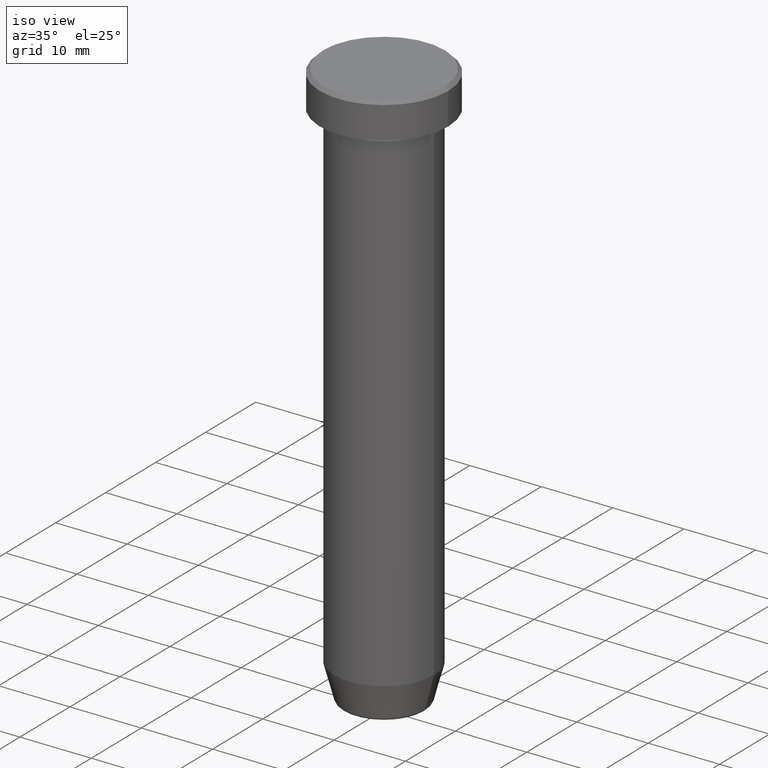
[diagram: clean part render]
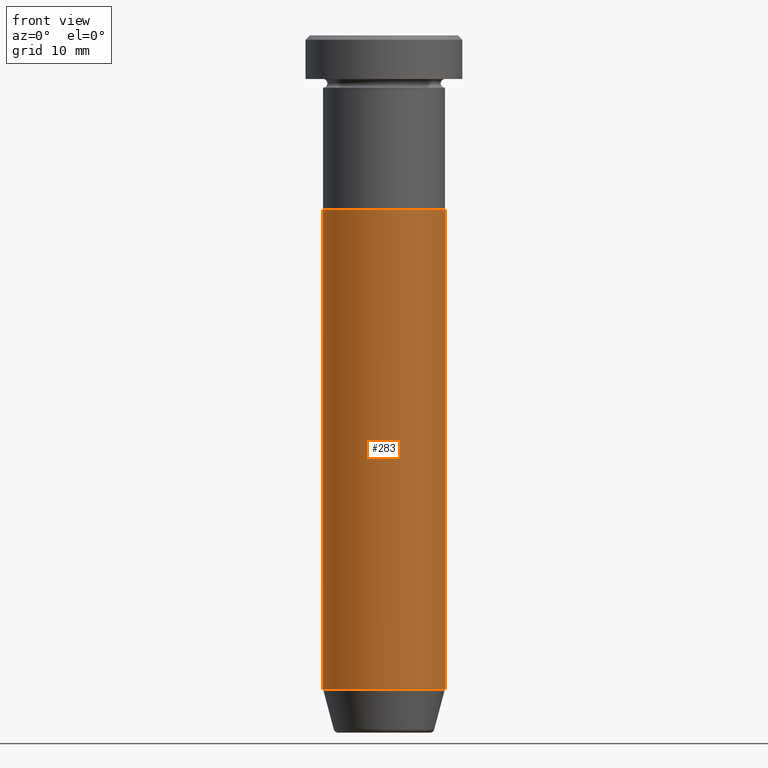
[diagram: tour spotlight — one face highlighted and labeled with its STEP entity id]
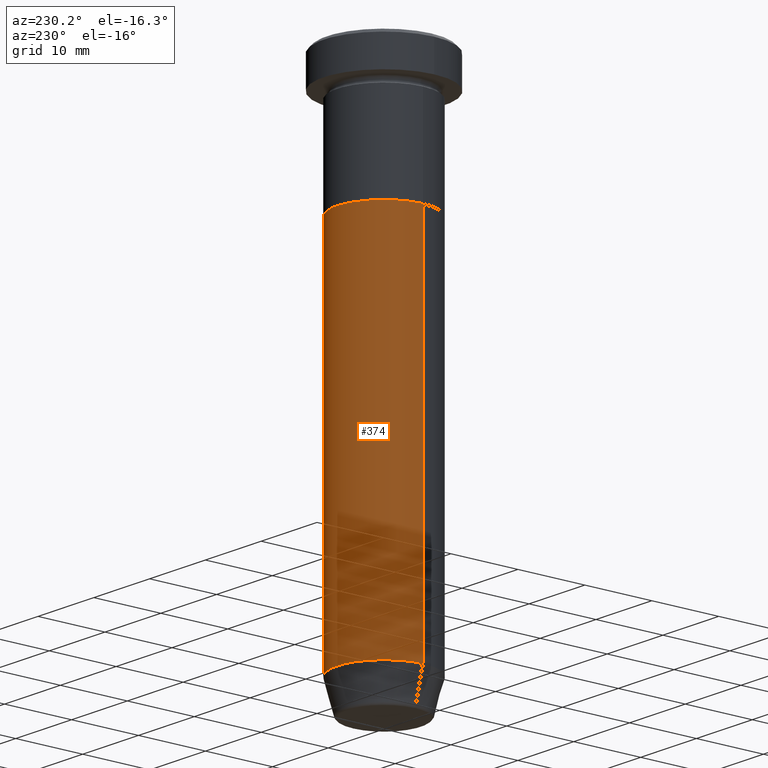
[diagram: tour spotlight — one face highlighted and labeled with its STEP entity id]
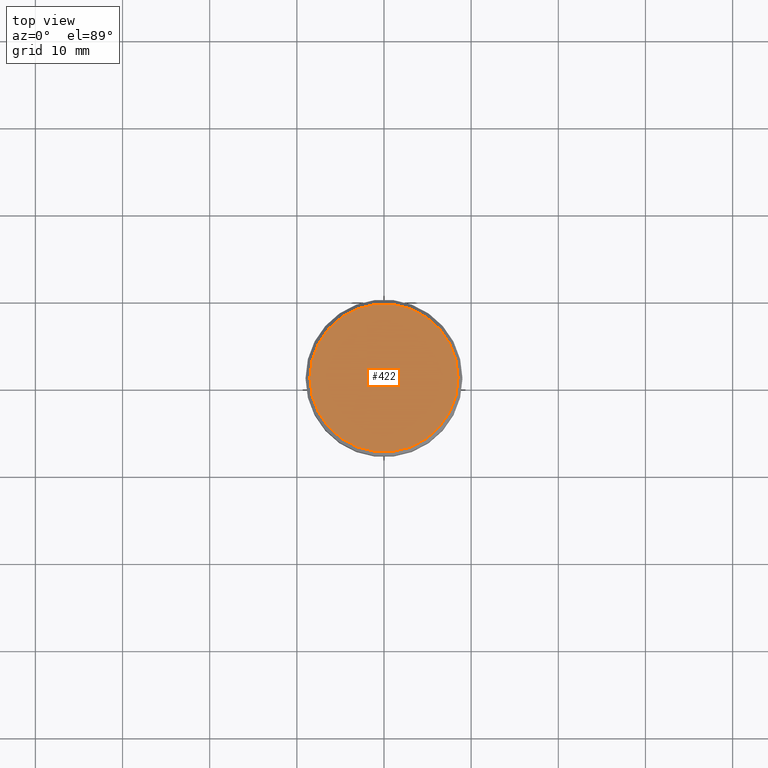
[diagram: tour spotlight — one face highlighted and labeled with its STEP entity id]
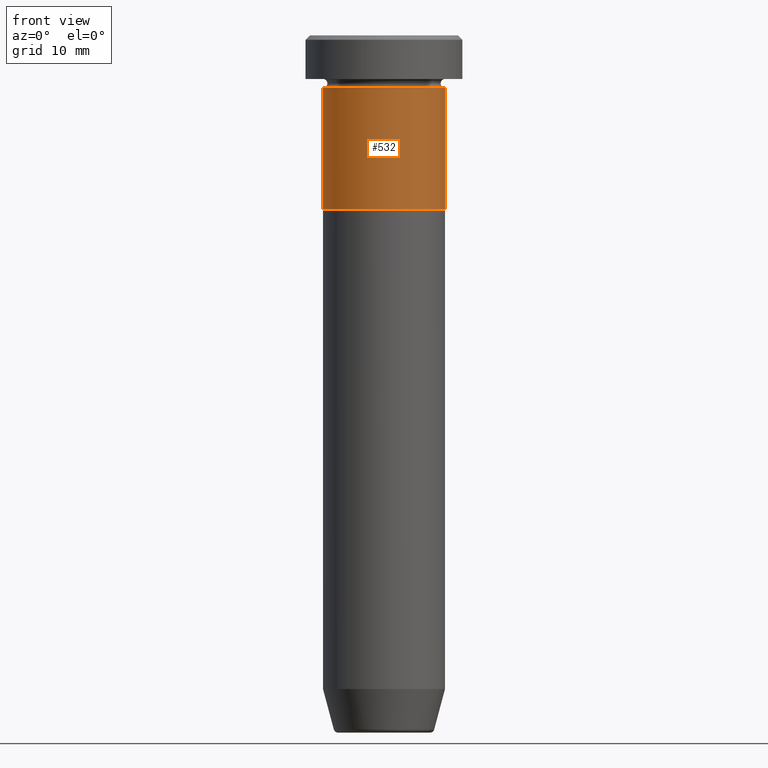
[diagram: tour spotlight — one face highlighted and labeled with its STEP entity id]
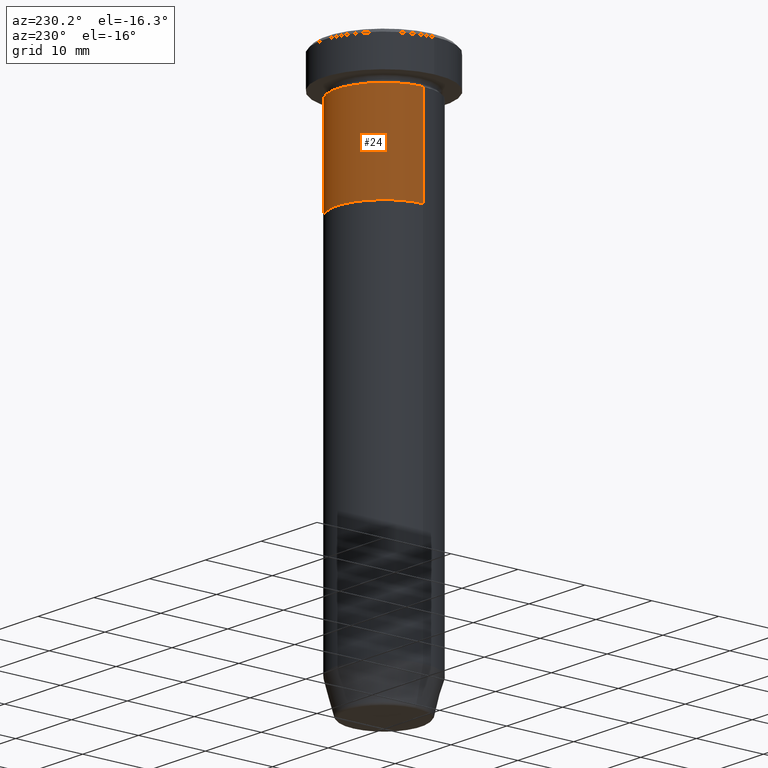
[diagram: tour spotlight — one face highlighted and labeled with its STEP entity id]
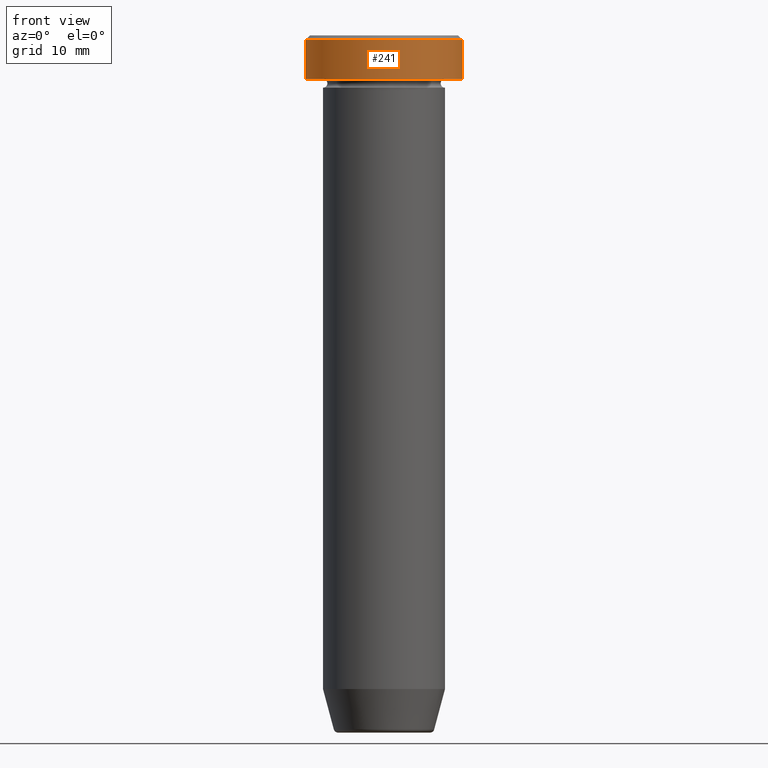
[diagram: tour spotlight — one face highlighted and labeled with its STEP entity id]
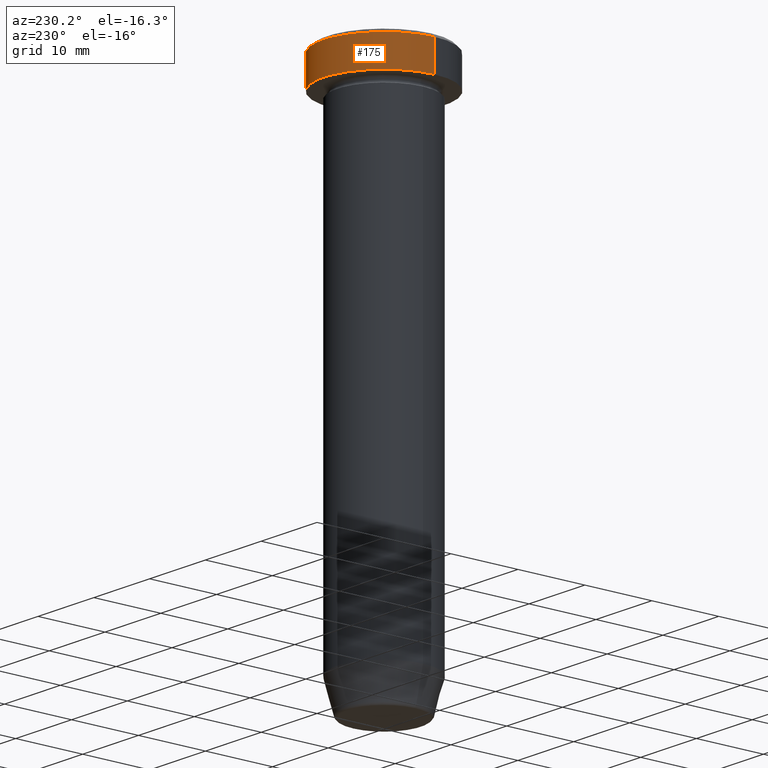
[diagram: tour spotlight — one face highlighted and labeled with its STEP entity id]
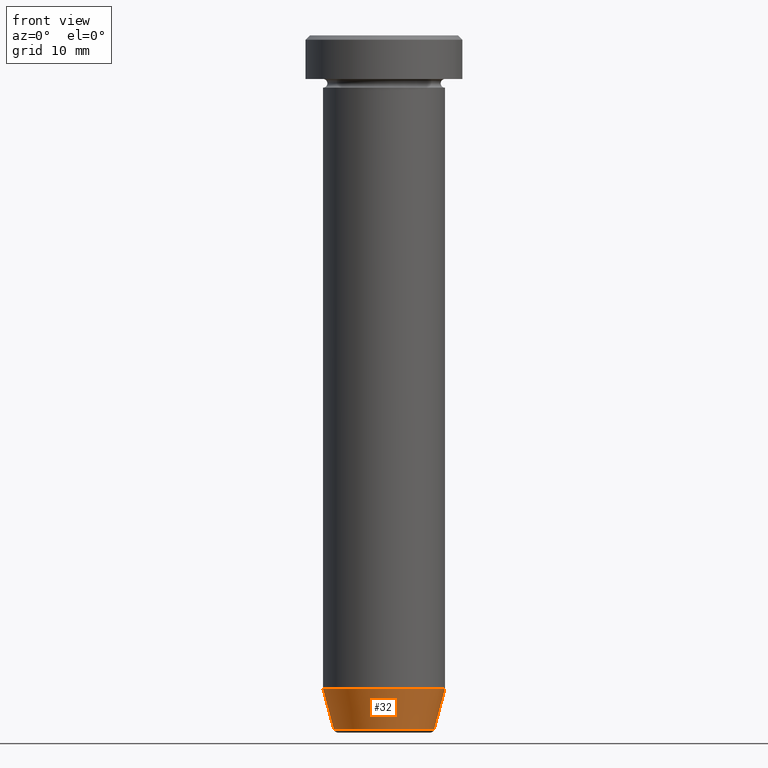
[diagram: tour spotlight — one face highlighted and labeled with its STEP entity id]
A machine part: a face-by-face anatomy tour. The part has 21 B-rep faces; the first image is the clean iso view, then the 8 largest visible faces are spotlighted one at a time (largest first), each with its STEP entity span.

Face 1 — front view, entity #283. In plain terms, the highlighted cylindrical surface (partial cylindrical patch) has radius 7 mm, axis along (-0, -0, 1).
Definition (entity closure, byte-faithful):
#58 = VECTOR ( 'NONE', #453, 1000.000000000000000 ) ;
#65 = ORIENTED_EDGE ( 'NONE', *, *, #474, .F. ) ;
#102 = EDGE_CURVE ( 'NONE', #395, #345, #593, .T. ) ;
#104 = CARTESIAN_POINT ( 'NONE',  ( 7.000000000000000000, 0.000000000000000000, -75.00000000000000000 ) ) ;
#118 = DIRECTION ( 'NONE',  ( -0.000000000000000000, -0.000000000000000000, 1.000000000000000000 ) ) ;
#120 = AXIS2_PLACEMENT_3D ( 'NONE', #457, #540, #273 ) ;
#145 = EDGE_LOOP ( 'NONE', ( #155, #358, #562, #65 ) ) ;
#153 = DIRECTION ( 'NONE',  ( 1.000000000000000000, 0.000000000000000000, 0.000000000000000000 ) ) ;
#155 = ORIENTED_EDGE ( 'NONE', *, *, #578, .F. ) ;
#201 = CARTESIAN_POINT ( 'NONE',  ( -7.000000000000000000, 8.572527594031473190E-16, -20.00000000000000000 ) ) ;
#208 = CARTESIAN_POINT ( 'NONE',  ( -7.000000000000000000, 8.572527594031473190E-16, -75.00000000000000000 ) ) ;
#210 = CARTESIAN_POINT ( 'NONE',  ( 0.000000000000000000, 0.000000000000000000, -20.00000000000000000 ) ) ;
#221 = LINE ( 'NONE', #528, #58 ) ;
#238 = CYLINDRICAL_SURFACE ( 'NONE', #120, 7.000000000000000000 ) ;
#259 = EDGE_CURVE ( 'NONE', #354, #395, #415, .T. ) ;
#262 = CARTESIAN_POINT ( 'NONE',  ( 0.000000000000000000, 0.000000000000000000, -75.00000000000000000 ) ) ;
#273 = DIRECTION ( 'NONE',  ( 1.000000000000000000, 0.000000000000000000, 0.000000000000000000 ) ) ;
#283 = ADVANCED_FACE ( 'NONE', ( #338 ), #238, .T. ) ;
#289 = DIRECTION ( 'NONE',  ( -0.000000000000000000, -0.000000000000000000, 1.000000000000000000 ) ) ;
#312 = AXIS2_PLACEMENT_3D ( 'NONE', #262, #509, #332 ) ;
#332 = DIRECTION ( 'NONE',  ( 1.000000000000000000, 0.000000000000000000, 0.000000000000000000 ) ) ;
#333 = CARTESIAN_POINT ( 'NONE',  ( 7.000000000000000000, 0.000000000000000000, 0.000000000000000000 ) ) ;
#338 = FACE_OUTER_BOUND ( 'NONE', #145, .T. ) ;
#341 = CARTESIAN_POINT ( 'NONE',  ( 7.000000000000000000, 0.000000000000000000, -20.00000000000000000 ) ) ;
#345 = VERTEX_POINT ( 'NONE', #341 ) ;
#354 = VERTEX_POINT ( 'NONE', #208 ) ;
#358 = ORIENTED_EDGE ( 'NONE', *, *, #259, .T. ) ;
#395 = VERTEX_POINT ( 'NONE', #104 ) ;
#415 = CIRCLE ( 'NONE', #312, 7.000000000000000000 ) ;
#417 = AXIS2_PLACEMENT_3D ( 'NONE', #210, #118, #153 ) ;
#452 = CIRCLE ( 'NONE', #417, 7.000000000000000000 ) ;
#453 = DIRECTION ( 'NONE',  ( -0.000000000000000000, -0.000000000000000000, 1.000000000000000000 ) ) ;
#457 = CARTESIAN_POINT ( 'NONE',  ( 0.000000000000000000, 0.000000000000000000, 0.000000000000000000 ) ) ;
#474 = EDGE_CURVE ( 'NONE', #527, #345, #452, .T. ) ;
#509 = DIRECTION ( 'NONE',  ( -0.000000000000000000, -0.000000000000000000, 1.000000000000000000 ) ) ;
#527 = VERTEX_POINT ( 'NONE', #201 ) ;
#528 = CARTESIAN_POINT ( 'NONE',  ( -7.000000000000000000, 8.572527594031473190E-16, 0.000000000000000000 ) ) ;
#533 = VECTOR ( 'NONE', #289, 1000.000000000000000 ) ;
#540 = DIRECTION ( 'NONE',  ( -0.000000000000000000, -0.000000000000000000, 1.000000000000000000 ) ) ;
#562 = ORIENTED_EDGE ( 'NONE', *, *, #102, .T. ) ;
#578 = EDGE_CURVE ( 'NONE', #354, #527, #221, .T. ) ;
#593 = LINE ( 'NONE', #333, #533 ) ;

Face 2 — auxiliary view, entity #374. In plain terms, the highlighted cylindrical surface (partial cylindrical patch) has radius 7 mm, axis along (-0, -0, 1).
Definition (entity closure, byte-faithful):
#13 = ORIENTED_EDGE ( 'NONE', *, *, #123, .F. ) ;
#42 = ORIENTED_EDGE ( 'NONE', *, *, #578, .T. ) ;
#47 = AXIS2_PLACEMENT_3D ( 'NONE', #523, #112, #480 ) ;
#53 = CARTESIAN_POINT ( 'NONE',  ( 0.000000000000000000, 0.000000000000000000, -20.00000000000000000 ) ) ;
#58 = VECTOR ( 'NONE', #453, 1000.000000000000000 ) ;
#68 = EDGE_LOOP ( 'NONE', ( #320, #42, #13, #588 ) ) ;
#102 = EDGE_CURVE ( 'NONE', #395, #345, #593, .T. ) ;
#104 = CARTESIAN_POINT ( 'NONE',  ( 7.000000000000000000, 0.000000000000000000, -75.00000000000000000 ) ) ;
#112 = DIRECTION ( 'NONE',  ( -0.000000000000000000, -0.000000000000000000, 1.000000000000000000 ) ) ;
#123 = EDGE_CURVE ( 'NONE', #345, #527, #443, .T. ) ;
#136 = DIRECTION ( 'NONE',  ( -0.000000000000000000, -0.000000000000000000, 1.000000000000000000 ) ) ;
#192 = CIRCLE ( 'NONE', #295, 7.000000000000000000 ) ;
#201 = CARTESIAN_POINT ( 'NONE',  ( -7.000000000000000000, 8.572527594031473190E-16, -20.00000000000000000 ) ) ;
#208 = CARTESIAN_POINT ( 'NONE',  ( -7.000000000000000000, 8.572527594031473190E-16, -75.00000000000000000 ) ) ;
#221 = LINE ( 'NONE', #528, #58 ) ;
#230 = DIRECTION ( 'NONE',  ( 1.000000000000000000, 0.000000000000000000, 0.000000000000000000 ) ) ;
#237 = DIRECTION ( 'NONE',  ( 1.000000000000000000, 0.000000000000000000, 0.000000000000000000 ) ) ;
#289 = DIRECTION ( 'NONE',  ( -0.000000000000000000, -0.000000000000000000, 1.000000000000000000 ) ) ;
#292 = EDGE_CURVE ( 'NONE', #395, #354, #192, .T. ) ;
#295 = AXIS2_PLACEMENT_3D ( 'NONE', #554, #136, #230 ) ;
#320 = ORIENTED_EDGE ( 'NONE', *, *, #292, .T. ) ;
#333 = CARTESIAN_POINT ( 'NONE',  ( 7.000000000000000000, 0.000000000000000000, 0.000000000000000000 ) ) ;
#341 = CARTESIAN_POINT ( 'NONE',  ( 7.000000000000000000, 0.000000000000000000, -20.00000000000000000 ) ) ;
#345 = VERTEX_POINT ( 'NONE', #341 ) ;
#354 = VERTEX_POINT ( 'NONE', #208 ) ;
#374 = ADVANCED_FACE ( 'NONE', ( #379 ), #560, .T. ) ;
#375 = AXIS2_PLACEMENT_3D ( 'NONE', #53, #498, #237 ) ;
#379 = FACE_OUTER_BOUND ( 'NONE', #68, .T. ) ;
#395 = VERTEX_POINT ( 'NONE', #104 ) ;
#443 = CIRCLE ( 'NONE', #375, 7.000000000000000000 ) ;
#453 = DIRECTION ( 'NONE',  ( -0.000000000000000000, -0.000000000000000000, 1.000000000000000000 ) ) ;
#480 = DIRECTION ( 'NONE',  ( 1.000000000000000000, 0.000000000000000000, 0.000000000000000000 ) ) ;
#498 = DIRECTION ( 'NONE',  ( -0.000000000000000000, -0.000000000000000000, 1.000000000000000000 ) ) ;
#523 = CARTESIAN_POINT ( 'NONE',  ( 0.000000000000000000, 0.000000000000000000, 0.000000000000000000 ) ) ;
#527 = VERTEX_POINT ( 'NONE', #201 ) ;
#528 = CARTESIAN_POINT ( 'NONE',  ( -7.000000000000000000, 8.572527594031473190E-16, 0.000000000000000000 ) ) ;
#533 = VECTOR ( 'NONE', #289, 1000.000000000000000 ) ;
#554 = CARTESIAN_POINT ( 'NONE',  ( 0.000000000000000000, 0.000000000000000000, -75.00000000000000000 ) ) ;
#560 = CYLINDRICAL_SURFACE ( 'NONE', #47, 7.000000000000000000 ) ;
#578 = EDGE_CURVE ( 'NONE', #354, #527, #221, .T. ) ;
#588 = ORIENTED_EDGE ( 'NONE', *, *, #102, .F. ) ;
#593 = LINE ( 'NONE', #333, #533 ) ;

Face 3 — top view, entity #422. In plain terms, the highlighted planar face has unit normal (0, -0, 1).
Definition (entity closure, byte-faithful):
#3 = DIRECTION ( 'NONE',  ( 1.000000000000000000, 0.000000000000000000, 0.000000000000000000 ) ) ;
#56 = DIRECTION ( 'NONE',  ( -0.000000000000000000, -0.000000000000000000, 1.000000000000000000 ) ) ;
#88 = DIRECTION ( 'NONE',  ( 1.000000000000000000, 0.000000000000000000, 0.000000000000000000 ) ) ;
#91 = FACE_OUTER_BOUND ( 'NONE', #209, .T. ) ;
#143 = EDGE_CURVE ( 'NONE', #199, #543, #321, .T. ) ;
#164 = EDGE_CURVE ( 'NONE', #543, #199, #595, .T. ) ;
#199 = VERTEX_POINT ( 'NONE', #329 ) ;
#209 = EDGE_LOOP ( 'NONE', ( #494, #455 ) ) ;
#275 = DIRECTION ( 'NONE',  ( -0.000000000000000000, -0.000000000000000000, 1.000000000000000000 ) ) ;
#282 = AXIS2_PLACEMENT_3D ( 'NONE', #336, #275, #380 ) ;
#313 = AXIS2_PLACEMENT_3D ( 'NONE', #463, #317, #88 ) ;
#317 = DIRECTION ( 'NONE',  ( 0.000000000000000000, -0.000000000000000000, 1.000000000000000000 ) ) ;
#321 = CIRCLE ( 'NONE', #282, 8.500000000000000000 ) ;
#329 = CARTESIAN_POINT ( 'NONE',  ( -8.500000000000000000, 0.000000000000000000, 0.000000000000000000 ) ) ;
#336 = CARTESIAN_POINT ( 'NONE',  ( 0.000000000000000000, 0.000000000000000000, 0.000000000000000000 ) ) ;
#380 = DIRECTION ( 'NONE',  ( 1.000000000000000000, 0.000000000000000000, 0.000000000000000000 ) ) ;
#396 = CARTESIAN_POINT ( 'NONE',  ( 8.500000000000000000, 1.071565949253933927E-15, 0.000000000000000000 ) ) ;
#422 = ADVANCED_FACE ( 'NONE', ( #91 ), #465, .T. ) ;
#455 = ORIENTED_EDGE ( 'NONE', *, *, #164, .T. ) ;
#463 = CARTESIAN_POINT ( 'NONE',  ( 0.000000000000000000, 0.000000000000000000, 0.000000000000000000 ) ) ;
#464 = CARTESIAN_POINT ( 'NONE',  ( 0.000000000000000000, 0.000000000000000000, 0.000000000000000000 ) ) ;
#465 = PLANE ( 'NONE',  #313 ) ;
#494 = ORIENTED_EDGE ( 'NONE', *, *, #143, .T. ) ;
#543 = VERTEX_POINT ( 'NONE', #396 ) ;
#577 = AXIS2_PLACEMENT_3D ( 'NONE', #464, #56, #3 ) ;
#595 = CIRCLE ( 'NONE', #577, 8.500000000000000000 ) ;

Face 4 — front view, entity #532. In plain terms, the highlighted cylindrical surface (partial cylindrical patch) has radius 7 mm, axis along (-0, -0, 1).
Definition (entity closure, byte-faithful):
#21 = CARTESIAN_POINT ( 'NONE',  ( -7.000000000000000000, 8.572527594031473190E-16, -20.00000000000000000 ) ) ;
#29 = EDGE_CURVE ( 'NONE', #141, #203, #477, .T. ) ;
#72 = ORIENTED_EDGE ( 'NONE', *, *, #246, .T. ) ;
#74 = EDGE_CURVE ( 'NONE', #456, #368, #103, .T. ) ;
#76 = AXIS2_PLACEMENT_3D ( 'NONE', #434, #536, #78 ) ;
#78 = DIRECTION ( 'NONE',  ( 1.000000000000000000, 0.000000000000000000, 0.000000000000000000 ) ) ;
#93 = AXIS2_PLACEMENT_3D ( 'NONE', #269, #131, #408 ) ;
#103 = LINE ( 'NONE', #367, #279 ) ;
#115 = CIRCLE ( 'NONE', #93, 7.000000000000000000 ) ;
#131 = DIRECTION ( 'NONE',  ( -0.000000000000000000, -0.000000000000000000, 1.000000000000000000 ) ) ;
#139 = CARTESIAN_POINT ( 'NONE',  ( 7.000000000000000000, 0.000000000000000000, -20.00000000000000000 ) ) ;
#141 = VERTEX_POINT ( 'NONE', #139 ) ;
#203 = VERTEX_POINT ( 'NONE', #277 ) ;
#235 = AXIS2_PLACEMENT_3D ( 'NONE', #483, #386, #331 ) ;
#246 = EDGE_CURVE ( 'NONE', #456, #141, #404, .T. ) ;
#248 = CYLINDRICAL_SURFACE ( 'NONE', #235, 7.000000000000000000 ) ;
#256 = CARTESIAN_POINT ( 'NONE',  ( 7.000000000000000000, 0.000000000000000000, 0.000000000000000000 ) ) ;
#269 = CARTESIAN_POINT ( 'NONE',  ( 0.000000000000000000, 0.000000000000000000, -6.000000000000000000 ) ) ;
#277 = CARTESIAN_POINT ( 'NONE',  ( 7.000000000000000000, 0.000000000000000000, -6.000000000000000000 ) ) ;
#279 = VECTOR ( 'NONE', #467, 1000.000000000000000 ) ;
#298 = FACE_OUTER_BOUND ( 'NONE', #387, .T. ) ;
#303 = EDGE_CURVE ( 'NONE', #368, #203, #115, .T. ) ;
#331 = DIRECTION ( 'NONE',  ( 1.000000000000000000, 0.000000000000000000, 0.000000000000000000 ) ) ;
#343 = CARTESIAN_POINT ( 'NONE',  ( -7.000000000000000000, 8.572527594031473190E-16, -6.000000000000000000 ) ) ;
#367 = CARTESIAN_POINT ( 'NONE',  ( -7.000000000000000000, 8.572527594031473190E-16, 0.000000000000000000 ) ) ;
#368 = VERTEX_POINT ( 'NONE', #343 ) ;
#384 = ORIENTED_EDGE ( 'NONE', *, *, #303, .F. ) ;
#386 = DIRECTION ( 'NONE',  ( -0.000000000000000000, -0.000000000000000000, 1.000000000000000000 ) ) ;
#387 = EDGE_LOOP ( 'NONE', ( #571, #72, #469, #384 ) ) ;
#404 = CIRCLE ( 'NONE', #76, 7.000000000000000000 ) ;
#408 = DIRECTION ( 'NONE',  ( 1.000000000000000000, 0.000000000000000000, 0.000000000000000000 ) ) ;
#434 = CARTESIAN_POINT ( 'NONE',  ( 0.000000000000000000, 0.000000000000000000, -20.00000000000000000 ) ) ;
#437 = DIRECTION ( 'NONE',  ( -0.000000000000000000, -0.000000000000000000, 1.000000000000000000 ) ) ;
#456 = VERTEX_POINT ( 'NONE', #21 ) ;
#467 = DIRECTION ( 'NONE',  ( -0.000000000000000000, -0.000000000000000000, 1.000000000000000000 ) ) ;
#469 = ORIENTED_EDGE ( 'NONE', *, *, #29, .T. ) ;
#477 = LINE ( 'NONE', #256, #576 ) ;
#483 = CARTESIAN_POINT ( 'NONE',  ( 0.000000000000000000, 0.000000000000000000, 0.000000000000000000 ) ) ;
#532 = ADVANCED_FACE ( 'NONE', ( #298 ), #248, .T. ) ;
#536 = DIRECTION ( 'NONE',  ( -0.000000000000000000, -0.000000000000000000, 1.000000000000000000 ) ) ;
#571 = ORIENTED_EDGE ( 'NONE', *, *, #74, .F. ) ;
#576 = VECTOR ( 'NONE', #437, 1000.000000000000000 ) ;

Face 5 — auxiliary view, entity #24. In plain terms, the highlighted cylindrical surface (partial cylindrical patch) has radius 7 mm, axis along (-0, -0, 1).
Definition (entity closure, byte-faithful):
#1 = CYLINDRICAL_SURFACE ( 'NONE', #584, 7.000000000000000000 ) ;
#17 = CARTESIAN_POINT ( 'NONE',  ( 0.000000000000000000, 0.000000000000000000, -6.000000000000000000 ) ) ;
#21 = CARTESIAN_POINT ( 'NONE',  ( -7.000000000000000000, 8.572527594031473190E-16, -20.00000000000000000 ) ) ;
#24 = ADVANCED_FACE ( 'NONE', ( #182 ), #1, .T. ) ;
#29 = EDGE_CURVE ( 'NONE', #141, #203, #477, .T. ) ;
#45 = EDGE_CURVE ( 'NONE', #203, #368, #566, .T. ) ;
#48 = CIRCLE ( 'NONE', #462, 7.000000000000000000 ) ;
#51 = CARTESIAN_POINT ( 'NONE',  ( 0.000000000000000000, 0.000000000000000000, -20.00000000000000000 ) ) ;
#74 = EDGE_CURVE ( 'NONE', #456, #368, #103, .T. ) ;
#103 = LINE ( 'NONE', #367, #279 ) ;
#119 = ORIENTED_EDGE ( 'NONE', *, *, #29, .F. ) ;
#139 = CARTESIAN_POINT ( 'NONE',  ( 7.000000000000000000, 0.000000000000000000, -20.00000000000000000 ) ) ;
#141 = VERTEX_POINT ( 'NONE', #139 ) ;
#182 = FACE_OUTER_BOUND ( 'NONE', #257, .T. ) ;
#203 = VERTEX_POINT ( 'NONE', #277 ) ;
#206 = DIRECTION ( 'NONE',  ( 1.000000000000000000, 0.000000000000000000, 0.000000000000000000 ) ) ;
#256 = CARTESIAN_POINT ( 'NONE',  ( 7.000000000000000000, 0.000000000000000000, 0.000000000000000000 ) ) ;
#257 = EDGE_LOOP ( 'NONE', ( #260, #522, #516, #119 ) ) ;
#260 = ORIENTED_EDGE ( 'NONE', *, *, #400, .T. ) ;
#276 = DIRECTION ( 'NONE',  ( -0.000000000000000000, -0.000000000000000000, 1.000000000000000000 ) ) ;
#277 = CARTESIAN_POINT ( 'NONE',  ( 7.000000000000000000, 0.000000000000000000, -6.000000000000000000 ) ) ;
#279 = VECTOR ( 'NONE', #467, 1000.000000000000000 ) ;
#335 = DIRECTION ( 'NONE',  ( -0.000000000000000000, -0.000000000000000000, 1.000000000000000000 ) ) ;
#337 = DIRECTION ( 'NONE',  ( 1.000000000000000000, 0.000000000000000000, 0.000000000000000000 ) ) ;
#343 = CARTESIAN_POINT ( 'NONE',  ( -7.000000000000000000, 8.572527594031473190E-16, -6.000000000000000000 ) ) ;
#361 = CARTESIAN_POINT ( 'NONE',  ( 0.000000000000000000, 0.000000000000000000, 0.000000000000000000 ) ) ;
#367 = CARTESIAN_POINT ( 'NONE',  ( -7.000000000000000000, 8.572527594031473190E-16, 0.000000000000000000 ) ) ;
#368 = VERTEX_POINT ( 'NONE', #343 ) ;
#400 = EDGE_CURVE ( 'NONE', #141, #456, #48, .T. ) ;
#437 = DIRECTION ( 'NONE',  ( -0.000000000000000000, -0.000000000000000000, 1.000000000000000000 ) ) ;
#456 = VERTEX_POINT ( 'NONE', #21 ) ;
#462 = AXIS2_PLACEMENT_3D ( 'NONE', #51, #335, #505 ) ;
#467 = DIRECTION ( 'NONE',  ( -0.000000000000000000, -0.000000000000000000, 1.000000000000000000 ) ) ;
#471 = AXIS2_PLACEMENT_3D ( 'NONE', #17, #570, #206 ) ;
#477 = LINE ( 'NONE', #256, #576 ) ;
#505 = DIRECTION ( 'NONE',  ( 1.000000000000000000, 0.000000000000000000, 0.000000000000000000 ) ) ;
#516 = ORIENTED_EDGE ( 'NONE', *, *, #45, .F. ) ;
#522 = ORIENTED_EDGE ( 'NONE', *, *, #74, .T. ) ;
#566 = CIRCLE ( 'NONE', #471, 7.000000000000000000 ) ;
#570 = DIRECTION ( 'NONE',  ( -0.000000000000000000, -0.000000000000000000, 1.000000000000000000 ) ) ;
#576 = VECTOR ( 'NONE', #437, 1000.000000000000000 ) ;
#584 = AXIS2_PLACEMENT_3D ( 'NONE', #361, #276, #337 ) ;

Face 6 — front view, entity #241. In plain terms, the highlighted cylindrical surface (partial cylindrical patch) has radius 9 mm, axis along (-0, -0, 1).
Definition (entity closure, byte-faithful):
#6 = CARTESIAN_POINT ( 'NONE',  ( -9.000000000000000000, 1.102182119232617714E-15, -0.5000000000000023315 ) ) ;
#10 = VERTEX_POINT ( 'NONE', #6 ) ;
#15 = FACE_OUTER_BOUND ( 'NONE', #245, .T. ) ;
#38 = CARTESIAN_POINT ( 'NONE',  ( -9.000000000000000000, 1.102182119232617714E-15, 0.000000000000000000 ) ) ;
#69 = DIRECTION ( 'NONE',  ( -0.000000000000000000, -0.000000000000000000, 1.000000000000000000 ) ) ;
#92 = DIRECTION ( 'NONE',  ( 1.000000000000000000, 0.000000000000000000, 0.000000000000000000 ) ) ;
#116 = ORIENTED_EDGE ( 'NONE', *, *, #196, .T. ) ;
#130 = ORIENTED_EDGE ( 'NONE', *, *, #491, .T. ) ;
#133 = CARTESIAN_POINT ( 'NONE',  ( 0.000000000000000000, 0.000000000000000000, -0.5000000000000023315 ) ) ;
#137 = EDGE_CURVE ( 'NONE', #426, #439, #184, .T. ) ;
#184 = LINE ( 'NONE', #460, #284 ) ;
#196 = EDGE_CURVE ( 'NONE', #439, #10, #489, .T. ) ;
#218 = AXIS2_PLACEMENT_3D ( 'NONE', #133, #552, #92 ) ;
#233 = AXIS2_PLACEMENT_3D ( 'NONE', #526, #69, #252 ) ;
#241 = ADVANCED_FACE ( 'NONE', ( #15 ), #441, .T. ) ;
#245 = EDGE_LOOP ( 'NONE', ( #551, #130, #271, #116 ) ) ;
#252 = DIRECTION ( 'NONE',  ( 1.000000000000000000, 0.000000000000000000, 0.000000000000000000 ) ) ;
#258 = DIRECTION ( 'NONE',  ( -0.000000000000000000, -0.000000000000000000, 1.000000000000000000 ) ) ;
#271 = ORIENTED_EDGE ( 'NONE', *, *, #137, .T. ) ;
#284 = VECTOR ( 'NONE', #291, 1000.000000000000000 ) ;
#286 = CIRCLE ( 'NONE', #534, 9.000000000000000000 ) ;
#291 = DIRECTION ( 'NONE',  ( -0.000000000000000000, -0.000000000000000000, 1.000000000000000000 ) ) ;
#370 = CARTESIAN_POINT ( 'NONE',  ( 9.000000000000000000, 0.000000000000000000, -5.000000000000000000 ) ) ;
#393 = CARTESIAN_POINT ( 'NONE',  ( 0.000000000000000000, 0.000000000000000000, -5.000000000000000000 ) ) ;
#399 = VECTOR ( 'NONE', #537, 1000.000000000000000 ) ;
#426 = VERTEX_POINT ( 'NONE', #370 ) ;
#439 = VERTEX_POINT ( 'NONE', #458 ) ;
#441 = CYLINDRICAL_SURFACE ( 'NONE', #233, 9.000000000000000000 ) ;
#458 = CARTESIAN_POINT ( 'NONE',  ( 9.000000000000000000, 0.000000000000000000, -0.5000000000000023315 ) ) ;
#460 = CARTESIAN_POINT ( 'NONE',  ( 9.000000000000000000, 0.000000000000000000, 0.000000000000000000 ) ) ;
#489 = CIRCLE ( 'NONE', #218, 9.000000000000000000 ) ;
#491 = EDGE_CURVE ( 'NONE', #591, #426, #286, .T. ) ;
#526 = CARTESIAN_POINT ( 'NONE',  ( 0.000000000000000000, 0.000000000000000000, 0.000000000000000000 ) ) ;
#534 = AXIS2_PLACEMENT_3D ( 'NONE', #393, #258, #574 ) ;
#535 = CARTESIAN_POINT ( 'NONE',  ( -9.000000000000000000, 1.102182119232617714E-15, -5.000000000000000000 ) ) ;
#537 = DIRECTION ( 'NONE',  ( -0.000000000000000000, -0.000000000000000000, 1.000000000000000000 ) ) ;
#551 = ORIENTED_EDGE ( 'NONE', *, *, #594, .F. ) ;
#552 = DIRECTION ( 'NONE',  ( 0.000000000000000000, 0.000000000000000000, -1.000000000000000000 ) ) ;
#574 = DIRECTION ( 'NONE',  ( 1.000000000000000000, 0.000000000000000000, 0.000000000000000000 ) ) ;
#591 = VERTEX_POINT ( 'NONE', #535 ) ;
#592 = LINE ( 'NONE', #38, #399 ) ;
#594 = EDGE_CURVE ( 'NONE', #591, #10, #592, .T. ) ;

Face 7 — auxiliary view, entity #175. In plain terms, the highlighted cylindrical surface (partial cylindrical patch) has radius 9 mm, axis along (-0, -0, 1).
Definition (entity closure, byte-faithful):
#6 = CARTESIAN_POINT ( 'NONE',  ( -9.000000000000000000, 1.102182119232617714E-15, -0.5000000000000023315 ) ) ;
#10 = VERTEX_POINT ( 'NONE', #6 ) ;
#38 = CARTESIAN_POINT ( 'NONE',  ( -9.000000000000000000, 1.102182119232617714E-15, 0.000000000000000000 ) ) ;
#46 = DIRECTION ( 'NONE',  ( 1.000000000000000000, 0.000000000000000000, 0.000000000000000000 ) ) ;
#84 = DIRECTION ( 'NONE',  ( 1.000000000000000000, 0.000000000000000000, 0.000000000000000000 ) ) ;
#101 = DIRECTION ( 'NONE',  ( -0.000000000000000000, -0.000000000000000000, 1.000000000000000000 ) ) ;
#107 = CIRCLE ( 'NONE', #219, 9.000000000000000000 ) ;
#137 = EDGE_CURVE ( 'NONE', #426, #439, #184, .T. ) ;
#140 = AXIS2_PLACEMENT_3D ( 'NONE', #547, #101, #425 ) ;
#147 = ORIENTED_EDGE ( 'NONE', *, *, #594, .T. ) ;
#162 = ORIENTED_EDGE ( 'NONE', *, *, #170, .T. ) ;
#170 = EDGE_CURVE ( 'NONE', #426, #591, #306, .T. ) ;
#175 = ADVANCED_FACE ( 'NONE', ( #179 ), #190, .T. ) ;
#179 = FACE_OUTER_BOUND ( 'NONE', #397, .T. ) ;
#184 = LINE ( 'NONE', #460, #284 ) ;
#190 = CYLINDRICAL_SURFACE ( 'NONE', #140, 9.000000000000000000 ) ;
#219 = AXIS2_PLACEMENT_3D ( 'NONE', #582, #413, #84 ) ;
#225 = ORIENTED_EDGE ( 'NONE', *, *, #586, .T. ) ;
#227 = CARTESIAN_POINT ( 'NONE',  ( 0.000000000000000000, 0.000000000000000000, -5.000000000000000000 ) ) ;
#281 = ORIENTED_EDGE ( 'NONE', *, *, #137, .F. ) ;
#284 = VECTOR ( 'NONE', #291, 1000.000000000000000 ) ;
#291 = DIRECTION ( 'NONE',  ( -0.000000000000000000, -0.000000000000000000, 1.000000000000000000 ) ) ;
#306 = CIRCLE ( 'NONE', #517, 9.000000000000000000 ) ;
#370 = CARTESIAN_POINT ( 'NONE',  ( 9.000000000000000000, 0.000000000000000000, -5.000000000000000000 ) ) ;
#397 = EDGE_LOOP ( 'NONE', ( #162, #147, #225, #281 ) ) ;
#399 = VECTOR ( 'NONE', #537, 1000.000000000000000 ) ;
#413 = DIRECTION ( 'NONE',  ( 0.000000000000000000, 0.000000000000000000, -1.000000000000000000 ) ) ;
#420 = DIRECTION ( 'NONE',  ( -0.000000000000000000, -0.000000000000000000, 1.000000000000000000 ) ) ;
#425 = DIRECTION ( 'NONE',  ( 1.000000000000000000, 0.000000000000000000, 0.000000000000000000 ) ) ;
#426 = VERTEX_POINT ( 'NONE', #370 ) ;
#439 = VERTEX_POINT ( 'NONE', #458 ) ;
#458 = CARTESIAN_POINT ( 'NONE',  ( 9.000000000000000000, 0.000000000000000000, -0.5000000000000023315 ) ) ;
#460 = CARTESIAN_POINT ( 'NONE',  ( 9.000000000000000000, 0.000000000000000000, 0.000000000000000000 ) ) ;
#517 = AXIS2_PLACEMENT_3D ( 'NONE', #227, #420, #46 ) ;
#535 = CARTESIAN_POINT ( 'NONE',  ( -9.000000000000000000, 1.102182119232617714E-15, -5.000000000000000000 ) ) ;
#537 = DIRECTION ( 'NONE',  ( -0.000000000000000000, -0.000000000000000000, 1.000000000000000000 ) ) ;
#547 = CARTESIAN_POINT ( 'NONE',  ( 0.000000000000000000, 0.000000000000000000, 0.000000000000000000 ) ) ;
#582 = CARTESIAN_POINT ( 'NONE',  ( 0.000000000000000000, 0.000000000000000000, -0.5000000000000023315 ) ) ;
#586 = EDGE_CURVE ( 'NONE', #10, #439, #107, .T. ) ;
#591 = VERTEX_POINT ( 'NONE', #535 ) ;
#592 = LINE ( 'NONE', #38, #399 ) ;
#594 = EDGE_CURVE ( 'NONE', #591, #10, #592, .T. ) ;

Face 8 — front view, entity #32. In plain terms, the highlighted conical surface has half-angle 15 deg.
Definition (entity closure, byte-faithful):
#2 = ORIENTED_EDGE ( 'NONE', *, *, #304, .F. ) ;
#12 = CARTESIAN_POINT ( 'NONE',  ( 0.000000000000000000, 0.000000000000000000, -79.62940952255127058 ) ) ;
#20 = CARTESIAN_POINT ( 'NONE',  ( 0.000000000000000000, 0.000000000000000000, -80.00000000000000000 ) ) ;
#22 = CARTESIAN_POINT ( 'NONE',  ( -5.759553456999437770, 7.812973149831955717E-16, -79.62940952255127058 ) ) ;
#32 = ADVANCED_FACE ( 'NONE', ( #113 ), #57, .T. ) ;
#57 = CONICAL_SURFACE ( 'NONE', #126, 5.660254037844383745, 0.2617993877991497409 ) ;
#60 = VERTEX_POINT ( 'NONE', #22 ) ;
#66 = DIRECTION ( 'NONE',  ( 1.000000000000000000, 0.000000000000000000, 0.000000000000000000 ) ) ;
#97 = DIRECTION ( 'NONE',  ( -0.2588190451025210170, 3.169619151431768639E-17, 0.9659258262890680902 ) ) ;
#104 = CARTESIAN_POINT ( 'NONE',  ( 7.000000000000000000, 0.000000000000000000, -75.00000000000000000 ) ) ;
#113 = FACE_OUTER_BOUND ( 'NONE', #330, .T. ) ;
#125 = CARTESIAN_POINT ( 'NONE',  ( -5.660254037844383745, 6.931811989807006322E-16, -80.00000000000000000 ) ) ;
#126 = AXIS2_PLACEMENT_3D ( 'NONE', #20, #394, #66 ) ;
#159 = VERTEX_POINT ( 'NONE', #468 ) ;
#173 = DIRECTION ( 'NONE',  ( 0.2588190451025210170, 0.000000000000000000, 0.9659258262890680902 ) ) ;
#187 = ORIENTED_EDGE ( 'NONE', *, *, #259, .F. ) ;
#202 = DIRECTION ( 'NONE',  ( -0.000000000000000000, -0.000000000000000000, 1.000000000000000000 ) ) ;
#208 = CARTESIAN_POINT ( 'NONE',  ( -7.000000000000000000, 8.572527594031473190E-16, -75.00000000000000000 ) ) ;
#231 = LINE ( 'NONE', #267, #307 ) ;
#259 = EDGE_CURVE ( 'NONE', #354, #395, #415, .T. ) ;
#262 = CARTESIAN_POINT ( 'NONE',  ( 0.000000000000000000, 0.000000000000000000, -75.00000000000000000 ) ) ;
#267 = CARTESIAN_POINT ( 'NONE',  ( 5.660254037844383745, 0.000000000000000000, -80.00000000000000000 ) ) ;
#304 = EDGE_CURVE ( 'NONE', #60, #354, #590, .T. ) ;
#307 = VECTOR ( 'NONE', #173, 1000.000000000000114 ) ;
#312 = AXIS2_PLACEMENT_3D ( 'NONE', #262, #509, #332 ) ;
#330 = EDGE_LOOP ( 'NONE', ( #2, #585, #568, #187 ) ) ;
#332 = DIRECTION ( 'NONE',  ( 1.000000000000000000, 0.000000000000000000, 0.000000000000000000 ) ) ;
#354 = VERTEX_POINT ( 'NONE', #208 ) ;
#362 = AXIS2_PLACEMENT_3D ( 'NONE', #12, #202, #510 ) ;
#391 = EDGE_CURVE ( 'NONE', #60, #159, #423, .T. ) ;
#394 = DIRECTION ( 'NONE',  ( -0.000000000000000000, -0.000000000000000000, 1.000000000000000000 ) ) ;
#395 = VERTEX_POINT ( 'NONE', #104 ) ;
#415 = CIRCLE ( 'NONE', #312, 7.000000000000000000 ) ;
#423 = CIRCLE ( 'NONE', #362, 5.759553456999437770 ) ;
#428 = EDGE_CURVE ( 'NONE', #159, #395, #231, .T. ) ;
#468 = CARTESIAN_POINT ( 'NONE',  ( 5.759553456999437770, 0.000000000000000000, -79.62940952255127058 ) ) ;
#509 = DIRECTION ( 'NONE',  ( -0.000000000000000000, -0.000000000000000000, 1.000000000000000000 ) ) ;
#510 = DIRECTION ( 'NONE',  ( -1.000000000000000000, 0.000000000000000000, 0.000000000000000000 ) ) ;
#544 = VECTOR ( 'NONE', #97, 1000.000000000000114 ) ;
#568 = ORIENTED_EDGE ( 'NONE', *, *, #428, .T. ) ;
#585 = ORIENTED_EDGE ( 'NONE', *, *, #391, .T. ) ;
#590 = LINE ( 'NONE', #125, #544 ) ;